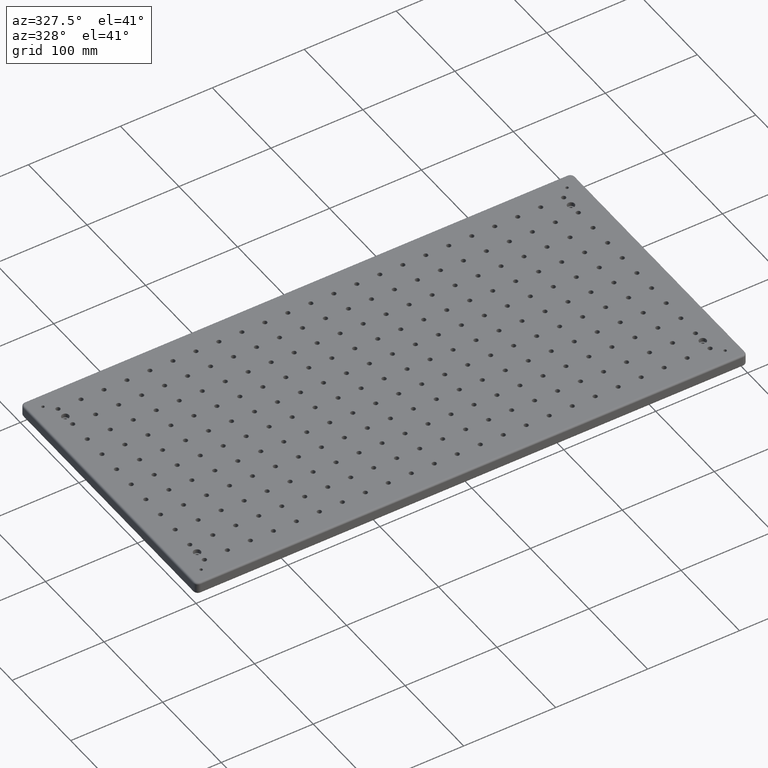
[diagram: clean part render]
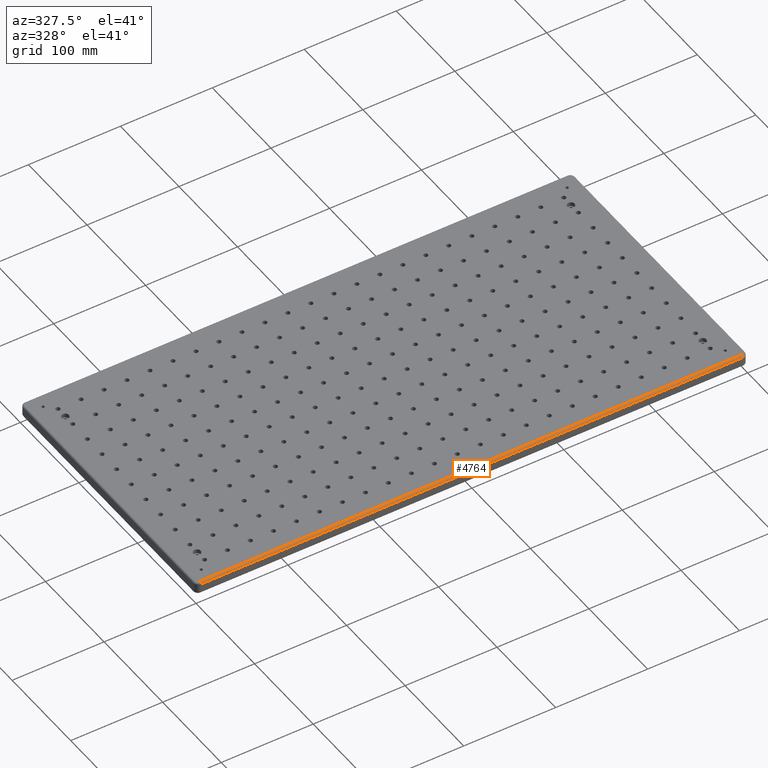
[diagram: same view with one face highlighted and labeled with its STEP entity id]
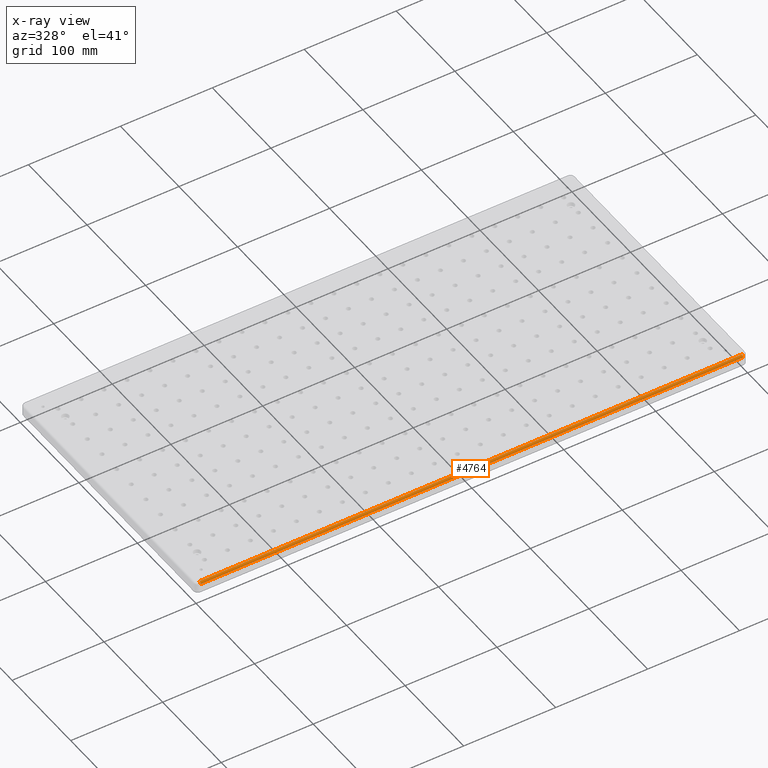
[diagram: x-ray of the same camera — body ghosted, the highlighted face saturated]
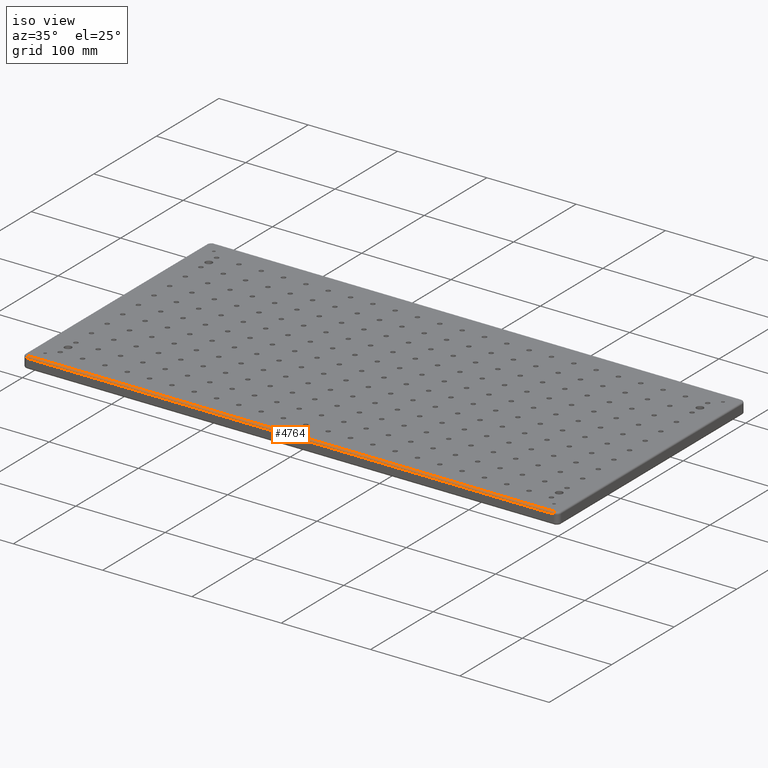
[diagram: same view with one face highlighted and labeled with its STEP entity id]
A machine part, auxiliary view. The second image highlights one B-rep face of the part: STEP entity #4764.
The next image is the same camera in x-ray: the body ghosted, the highlighted face saturated — about 0% of this face is hidden behind the body in this view.
A second angle (iso view) of the same face is appended — the face is thin or edge-on in the first view.
In plain terms, the highlighted cylindrical surface (edge-blend (fillet) strip) has radius 2 mm, axis along (-1, 0, 0).
Its self-contained STEP definition (entity closure, byte-faithful):
#261 = CIRCLE ( 'NONE', #11452, 2.000000000000000000 ) ;
#512 = CARTESIAN_POINT ( 'NONE',  ( 4.999999999999999100, 2.000000000000000000, -2.000000000000000000 ) ) ;
#2085 = DIRECTION ( 'NONE',  ( -1.000000000000000000, 0.0000000000000000000, 0.0000000000000000000 ) ) ;
#2232 = DIRECTION ( 'NONE',  ( -1.000000000000000000, -0.0000000000000000000, 0.0000000000000000000 ) ) ;
#2354 = DIRECTION ( 'NONE',  ( -1.000000000000000000, 0.0000000000000000000, 0.0000000000000000000 ) ) ;
#2411 = DIRECTION ( 'NONE',  ( 0.0000000000000000000, 0.0000000000000000000, 1.000000000000000000 ) ) ;
#3173 = ORIENTED_EDGE ( 'NONE', *, *, #6907, .F. ) ;
#3431 = VECTOR ( 'NONE', #2232, 1000.000000000000000 ) ;
#3833 = CYLINDRICAL_SURFACE ( 'NONE', #7033, 2.000000000000000000 ) ;
#4764 = ADVANCED_FACE ( 'NONE', ( #11176 ), #3833, .T. ) ;
#4818 = DIRECTION ( 'NONE',  ( 1.000000000000000000, 0.0000000000000000000, 0.0000000000000000000 ) ) ;
#4909 = LINE ( 'NONE', #10261, #3431 ) ;
#6043 = ORIENTED_EDGE ( 'NONE', *, *, #16671, .F. ) ;
#6907 = EDGE_CURVE ( 'NONE', #14062, #15388, #261, .T. ) ;
#6965 = CARTESIAN_POINT ( 'NONE',  ( 0.0000000000000000000, 2.000000000000001800, -2.000000000000000000 ) ) ;
#7033 = AXIS2_PLACEMENT_3D ( 'NONE', #6965, #2354, #2411 ) ;
#7356 = CARTESIAN_POINT ( 'NONE',  ( 594.9999999999998900, 1.999999999999999100, -2.000000000000000000 ) ) ;
#7498 = DIRECTION ( 'NONE',  ( -1.000000000000000000, 0.0000000000000000000, 0.0000000000000000000 ) ) ;
#9918 = EDGE_LOOP ( 'NONE', ( #18363, #6043, #3173, #18325 ) ) ;
#10261 = CARTESIAN_POINT ( 'NONE',  ( 4.999999999999999100, 0.0000000000000000000, -2.000000000000000000 ) ) ;
#10278 = LINE ( 'NONE', #14097, #14970 ) ;
#10349 = CARTESIAN_POINT ( 'NONE',  ( 4.999999999999999100, 2.000000000000001800, 0.0000000000000000000 ) ) ;
#11176 = FACE_OUTER_BOUND ( 'NONE', #9918, .T. ) ;
#11452 = AXIS2_PLACEMENT_3D ( 'NONE', #512, #2085, #13049 ) ;
#13049 = DIRECTION ( 'NONE',  ( 0.0000000000000000000, 0.0000000000000000000, 1.000000000000000000 ) ) ;
#13976 = CARTESIAN_POINT ( 'NONE',  ( 4.999999999999999100, 0.0000000000000000000, -2.000000000000000000 ) ) ;
#14062 = VERTEX_POINT ( 'NONE', #13976 ) ;
#14097 = CARTESIAN_POINT ( 'NONE',  ( 594.9999999999998900, 2.000000000000001800, 0.0000000000000000000 ) ) ;
#14163 = AXIS2_PLACEMENT_3D ( 'NONE', #7356, #7498, #15129 ) ;
#14731 = CARTESIAN_POINT ( 'NONE',  ( 594.9999999999998900, 0.0000000000000000000, -2.000000000000000000 ) ) ;
#14788 = CARTESIAN_POINT ( 'NONE',  ( 594.9999999999998900, 2.000000000000001800, 0.0000000000000000000 ) ) ;
#14970 = VECTOR ( 'NONE', #4818, 1000.000000000000000 ) ;
#15129 = DIRECTION ( 'NONE',  ( 0.0000000000000000000, 0.0000000000000000000, 1.000000000000000000 ) ) ;
#15388 = VERTEX_POINT ( 'NONE', #10349 ) ;
#16084 = CIRCLE ( 'NONE', #14163, 2.000000000000000000 ) ;
#16671 = EDGE_CURVE ( 'NONE', #15388, #17910, #10278, .T. ) ;
#16905 = EDGE_CURVE ( 'NONE', #17479, #14062, #4909, .T. ) ;
#17479 = VERTEX_POINT ( 'NONE', #14731 ) ;
#17910 = VERTEX_POINT ( 'NONE', #14788 ) ;
#18325 = ORIENTED_EDGE ( 'NONE', *, *, #16905, .F. ) ;
#18363 = ORIENTED_EDGE ( 'NONE', *, *, #19155, .T. ) ;
#19155 = EDGE_CURVE ( 'NONE', #17479, #17910, #16084, .T. ) ;